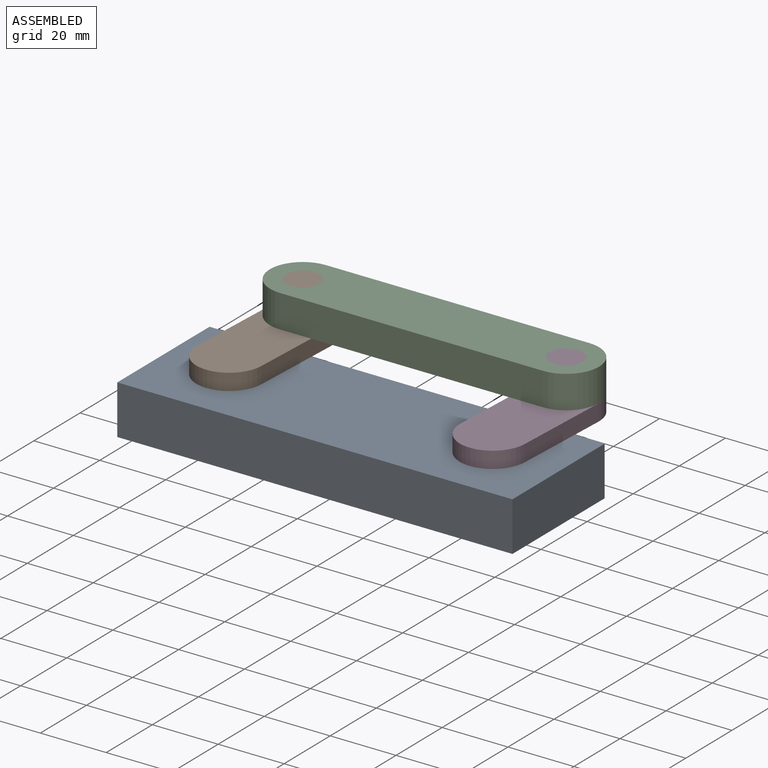
[diagram: assembled view]
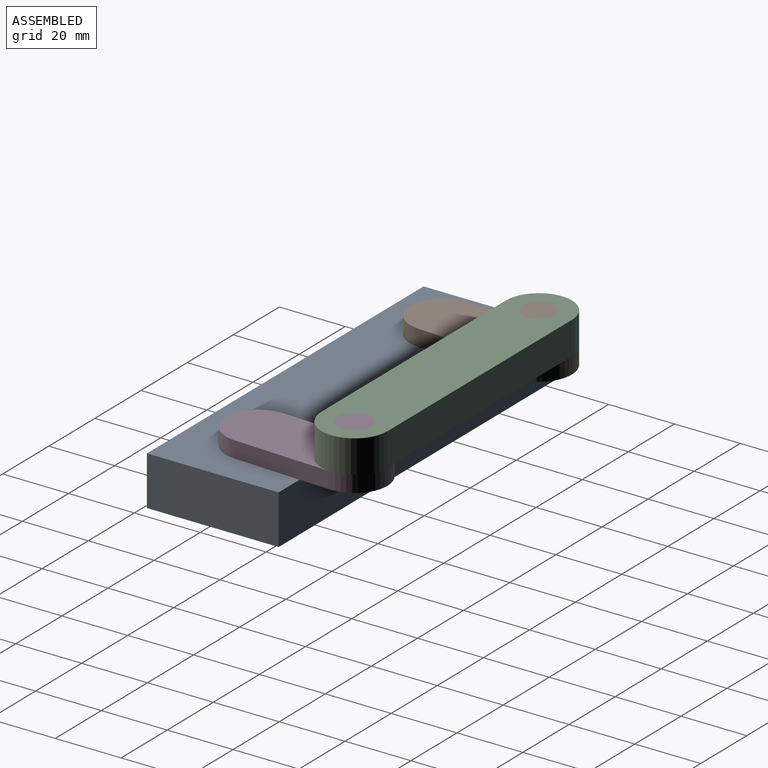
[diagram: assembled view, second angle]
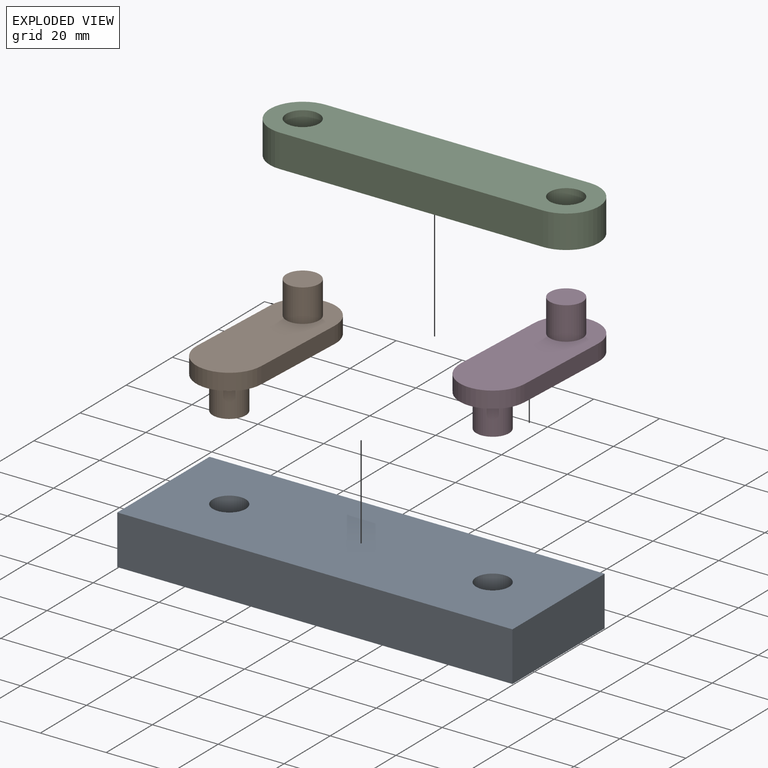
[diagram: exploded view]
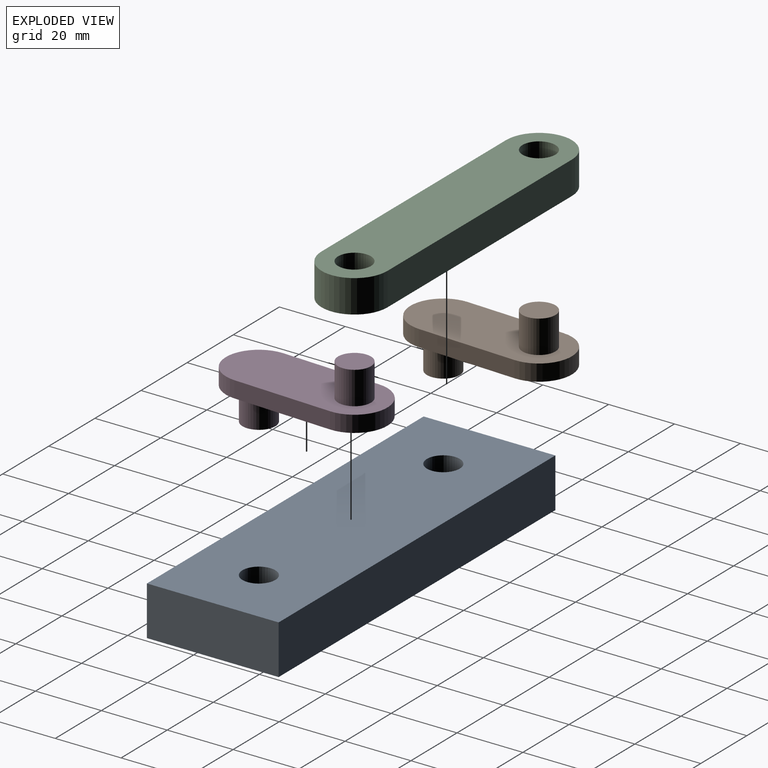
[diagram: exploded view, second angle]
ASSEMBLY  parts=4 mates=7
PART A: 8 faces, bbox 120x40x15 mm
  f0: plane 120x15mm, normal (0,1,0), area 1800mm2, adj f1,f5,f6,f7
  f1: plane 40x15mm, normal (-1,0,0), area 600mm2, adj f0,f2,f6,f7
  f2: plane 120x15mm, normal (0,-1,0), area 1800mm2, adj f1,f5,f6,f7
  f3: cylinder r=5mm len=15mm, axis (0,0,-1), area 471.2mm2, adj f6,f7
  f4: cylinder r=5mm len=15mm, axis (0,0,-1), area 471.2mm2, adj f6,f7
  f5: plane 40x15mm, normal (1,0,0), area 600mm2, adj f0,f2,f6,f7
  f6: plane 120x40mm, normal (0,0,1), area 4642.9mm2, adj f0,f1,f2,f3,f4,f5
  f7: plane 120x40mm, normal (0,0,-1), area 4642.9mm2, adj f0,f1,f2,f3,f4,f5
PART B: 10 faces, bbox 50x20x25 mm
  f0: plane 30x5mm, normal (0,-1,0), area 150mm2, adj f1,f3,f4,f5
  f1: cylinder r=10mm len=20mm, axis (0,0,-1), area 157.1mm2, adj f0,f2,f4,f5
  f2: plane 30x5mm, normal (0,1,0), area 150mm2, adj f1,f3,f4,f5
  f3: cylinder r=10mm len=20mm, axis (0,0,-1), area 157.1mm2, adj f0,f2,f4,f5
  f4: plane 50x20mm, normal (0,0,1), area 835.6mm2, adj f0,f1,f2,f3,f6
  f5: plane 50x20mm, normal (0,0,-1), area 835.6mm2, adj f0,f1,f2,f3,f8
  f6: cylinder r=5mm len=10mm, axis (0,0,-1), area 314.2mm2, adj f4,f7
  f7: plane 10x10mm, normal (0,0,1), area 78.5mm2, adj f6
  f8: cylinder r=5mm len=10mm, axis (0,0,1), area 314.2mm2, adj f5,f9
  f9: plane 10x10mm, normal (0,0,-1), area 78.5mm2, adj f8
PART C: 8 faces, bbox 100x20x10 mm
  f0: plane 80x10mm, normal (0,-1,0), area 800mm2, adj f1,f5,f6,f7
  f1: cylinder r=10mm len=20mm, axis (0,0,-1), area 314.2mm2, adj f0,f2,f6,f7
  f2: plane 80x10mm, normal (0,1,0), area 800mm2, adj f1,f5,f6,f7
  f3: cylinder r=5mm len=10mm, axis (0,0,-1), area 314.2mm2, adj f6,f7
  f4: cylinder r=5mm len=10mm, axis (0,0,-1), area 314.2mm2, adj f6,f7
  f5: cylinder r=10mm len=20mm, axis (0,0,-1), area 314.2mm2, adj f0,f2,f6,f7
  f6: plane 100x20mm, normal (0,0,1), area 1757.1mm2, adj f0,f1,f2,f3,f4,f5
  f7: plane 100x20mm, normal (0,0,-1), area 1757.1mm2, adj f0,f1,f2,f3,f4,f5
PART D: same geometry as B
PLACE A t=(2.19,-12.63,-8.38)mm fixed
PLACE B rot(axis=(0,0,-1),92.5deg) t=(-37.14,2.36,6.62)mm
PLACE C t=(3.52,17.34,11.62)mm
PLACE D rot(axis=(0,0,-1),92.5deg) t=(42.86,2.36,6.62)mm
MATE planar D.f5 <-> A.f6  axis (0,0,-1) through (42.92,3.77,6.62)mm
MATE cylindrical D.f1 <-> A.f4  axis (0,0,-1) through (42.19,-12.63,-3.38)mm
MATE cylindrical C.f3 <-> B.f3  axis (0,0,1) through (-36.48,17.34,21.62)mm
MATE planar C.f7 <-> D.f4  axis (0,0,-1) through (3.52,17.34,11.62)mm
MATE planar B.f5 <-> A.f6  axis (0,0,-1) through (-37.08,3.77,6.62)mm
MATE cylindrical B.f1 <-> A.f3  axis (0,0,-1) through (-37.81,-12.63,-3.38)mm
MATE cylindrical D.f3 <-> C.f1  axis (0,0,1) through (43.52,17.34,21.62)mm
